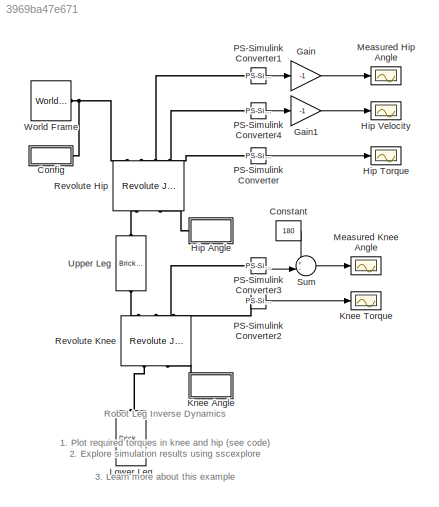
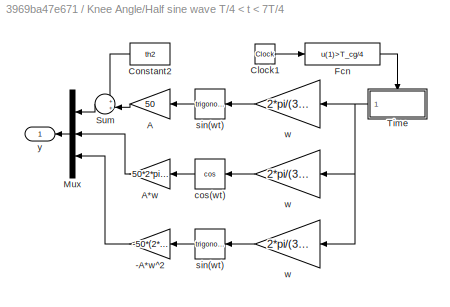
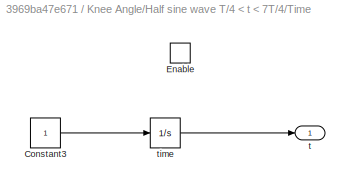
MODEL slx_3969ba47e671
KIND model
CONFIG AbsTol = 1e-4
CONFIG EnableMultiTasking = on
CONFIG FixedStep = auto
CONFIG InitFcn = r2d=180/pi;\nif (~exist('TimeValues'))\n  sm_robot_run_4legs_param_def_load(bdroot)\nend
CONFIG MaxStep = 1e-3
CONFIG MinStep = auto
CONFIG RelTol = 1e-3
CONFIG SampleTimeConstraint = Unconstrained
CONFIG SolverName = ode15s
CONFIG StartTime = 0.0
CONFIG StopTime = max(TimeValues)
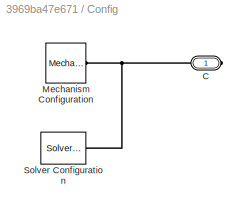
BLOCK [SubSystem] Config
  Ports = [0, 0, 0, 0, 0, 0, 1]
  RequestExecContextInheritance = off
BLOCK [PMIOPort] Config/C
  Side = Right
BLOCK [Reference] Config/Mechanism Configuration  REF=sm_lib/Utilities/Mechanism
Configuration
  Ports = [0, 0, 0, 0, 0, 0, 1]
  SourceBlock = sm_lib/Utilities/Mechanism\nConfiguration
  SourceProductBaseCode = MS
  SourceType = Mechanism\nConfiguration
BLOCK [Reference] Config/Solver Configuration  REF=nesl_utility/Solver
Configuration
  Ports = [0, 0, 0, 0, 0, 0, 1]
  SourceBlock = nesl_utility/Solver\nConfiguration
  SourceProductBaseCode = SS,PW,VE
  SourceType = Solver\nConfiguration
BLOCK [Constant] Constant
  Value = 180
BLOCK [Gain] Gain
  Gain = -1
BLOCK [Gain] Gain1
  Gain = -1
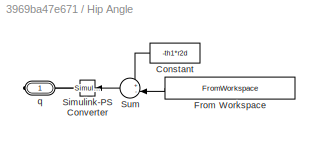
BLOCK [SubSystem] Hip Angle
  Ports = [0, 0, 0, 0, 0, 0, 1]
  RequestExecContextInheritance = off
BLOCK [Constant] Hip Angle/Constant
  Value = -th1*r2d
BLOCK [FromWorkspace] Hip Angle/From Workspace
  VariableName = [TimeValues DataValues]
BLOCK [Reference] Hip Angle/Simulink-PS Converter  REF=nesl_utility/Simulink-PS
Converter
  Ports = [1, 0, 0, 0, 0, 0, 1]
  SourceBlock = nesl_utility/Simulink-PS\nConverter
  SourceProductBaseCode = SS,PW,VE
  SourceType = Simulink-PS\nConverter
BLOCK [Sum] Hip Angle/Sum
  Inputs = +-|
  Ports = [2, 1]
BLOCK [PMIOPort] Hip Angle/q
  Side = Right
BLOCK [Scope] Hip Torque
  Floating = off
  NumInputPorts = 1
  Ports = [1]
  ScopeSpecificationString = Simulink.scopes.TimeScopeBlockCfg('CurrentConfiguration', extmgr.ConfigurationSet(extmgr.Configuration('Core','General UI',true),extmgr.Configuration('Core','Source UI',true),extmgr.Configuration('Sources','WiredSimulink',true,'DataLogging',true,'DataLoggingVariableName','hip_torque','DataLoggingSaveFormat','StructureWithTime','DataLoggingDecimation','1','DataLoggingDecimateData',true),extmgr.Conf...<+1712ch>
BLOCK [Scope] Hip Velocity
  Floating = off
  NumInputPorts = 1
  Ports = [1]
  ScopeSpecificationString = Simulink.scopes.TimeScopeBlockCfg('CurrentConfiguration', extmgr.ConfigurationSet(extmgr.Configuration('Core','General UI',true),extmgr.Configuration('Core','Source UI',true),extmgr.Configuration('Sources','WiredSimulink',true,'DataLogging',true,'DataLoggingSaveFormat','StructureWithTime','DataLoggingLimitDataPoints',true,'DataLoggingDecimation','1','DataLoggingDecimateData',true,'DataLoggingVaria...<+1772ch>
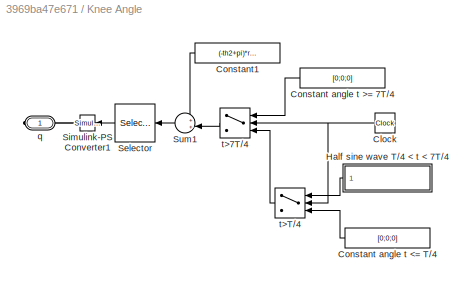
BLOCK [SubSystem] Knee Angle
  Ports = [0, 0, 0, 0, 0, 0, 1]
  RequestExecContextInheritance = off
BLOCK [Clock] Knee Angle/Clock
BLOCK [Constant] Knee Angle/Constant angle t <= T//4
  Value = [0;0;0]
BLOCK [Constant] Knee Angle/Constant angle t >= 7T//4
  NameLocation = top
  Value = [0;0;0]
BLOCK [Constant] Knee Angle/Constant1
  Value = (-th2+pi)*r2d
BLOCK [SubSystem] Knee Angle/Half sine wave T//4 < t < 7T//4
  Ports = [0, 1]
  RequestExecContextInheritance = off
BLOCK [Gain] Knee Angle/Half sine wave T//4 < t < 7T//4/-A*w^2
  Gain = -50*(2*pi/(3*T_cg))^2
BLOCK [Gain] Knee Angle/Half sine wave T//4 < t < 7T//4/A
  Gain = 50
BLOCK [Gain] Knee Angle/Half sine wave T//4 < t < 7T//4/A*w
  Gain = 50*2*pi/(3*T_cg)
BLOCK [Clock] Knee Angle/Half sine wave T//4 < t < 7T//4/Clock1
BLOCK [Constant] Knee Angle/Half sine wave T//4 < t < 7T//4/Constant2
  Value = th2
BLOCK [Fcn] Knee Angle/Half sine wave T//4 < t < 7T//4/Fcn
  Expr = u(1)>T_cg/4
BLOCK [Mux] Knee Angle/Half sine wave T//4 < t < 7T//4/Mux
  DisplayOption = bar
  Inputs = 3
  NameLocation = top
  Ports = [3, 1]
BLOCK [Sum] Knee Angle/Half sine wave T//4 < t < 7T//4/Sum
  Inputs = ++|
  NameLocation = top
  Ports = [2, 1]
BLOCK [SubSystem] Knee Angle/Half sine wave T//4 < t < 7T//4/Time
  Ports = [0, 1, 1]
  RequestExecContextInheritance = off
  TreatAsAtomicUnit = on
BLOCK [Constant] Knee Angle/Half sine wave T//4 < t < 7T//4/Time/Constant3
BLOCK [EnablePort] Knee Angle/Half sine wave T//4 < t < 7T//4/Time/Enable
  Ports = []
BLOCK [Outport] Knee Angle/Half sine wave T//4 < t < 7T//4/Time/t
  InitialOutput = 0
  VectorParamsAs1DForOutWhenUnconnected = off
BLOCK [Integrator] Knee Angle/Half sine wave T//4 < t < 7T//4/Time/time
  Ports = [1, 1]
BLOCK [Trigonometry] Knee Angle/Half sine wave T//4 < t < 7T//4/cos(wt)
  Operator = cos
  Ports = [1, 1]
BLOCK [Trigonometry] Knee Angle/Half sine wave T//4 < t < 7T//4/sin(wt)
  Ports = [1, 1]
BLOCK [Trigonometry] Knee Angle/Half sine wave T//4 < t < 7T//4/sin(wt) 
  Ports = [1, 1]
BLOCK [Gain] Knee Angle/Half sine wave T//4 < t < 7T//4/w
  Gain = 2*pi/(3*T_cg)
BLOCK [Gain] Knee Angle/Half sine wave T//4 < t < 7T//4/w 
  Gain = 2*pi/(3*T_cg)
BLOCK [Gain] Knee Angle/Half sine wave T//4 < t < 7T//4/w  
  Gain = 2*pi/(3*T_cg)
BLOCK [Outport] Knee Angle/Half sine wave T//4 < t < 7T//4/y
  VectorParamsAs1DForOutWhenUnconnected = off
BLOCK [Selector] Knee Angle/Selector
  IndexOptions = Index vector (dialog)
  Indices = 1
  InputPortWidth = 3
  OutputSizes = 1
  Ports = [1, 1]
BLOCK [Reference] Knee Angle/Simulink-PS Converter1  REF=nesl_utility/Simulink-PS
Converter
  Ports = [1, 0, 0, 0, 0, 0, 1]
  SourceBlock = nesl_utility/Simulink-PS\nConverter
  SourceProductBaseCode = SS,PW,VE
  SourceType = Simulink-PS\nConverter
BLOCK [Sum] Knee Angle/Sum1
  Inputs = ++|
  Ports = [2, 1]
BLOCK [PMIOPort] Knee Angle/q
  NameLocation = top
  Side = Right
BLOCK [Switch] Knee Angle/t>7T//4
  InputSameDT = off
  SaturateOnIntegerOverflow = off
  Threshold = 7*T_cg/4
BLOCK [Switch] Knee Angle/t>T//4
  InputSameDT = off
  SaturateOnIntegerOverflow = off
  Threshold = T_cg/4
BLOCK [Scope] Knee Torque
  Floating = off
  NumInputPorts = 1
  Ports = [1]
  ScopeSpecificationString = Simulink.scopes.TimeScopeBlockCfg('CurrentConfiguration', extmgr.ConfigurationSet(extmgr.Configuration('Core','General UI',true),extmgr.Configuration('Core','Source UI',true),extmgr.Configuration('Sources','WiredSimulink',true,'DataLogging',true,'DataLoggingVariableName','knee_torque','DataLoggingSaveFormat','StructureWithTime','DataLoggingDecimation','1','DataLoggingDecimateData',true),extmgr.Con...<+1747ch>
BLOCK [Reference] Lower Leg  REF=sm_lib/Body Elements/Brick Solid
  NameLocation = left
  Ports = [0, 0, 0, 0, 0, 1, 1]
  SourceBlock = sm_lib/Body Elements/Brick Solid
  SourceProductBaseCode = MS
  SourceType = Brick Solid
BLOCK [Scope] Measured Hip Angle
  Floating = off
  NumInputPorts = 1
  Ports = [1]
  ScopeSpecificationString = Simulink.scopes.TimeScopeBlockCfg('CurrentConfiguration', extmgr.ConfigurationSet(extmgr.Configuration('Core','General UI',true),extmgr.Configuration('Core','Source UI',true),extmgr.Configuration('Sources','WiredSimulink',true,'DataLogging',true,'DataLoggingSaveFormat','StructureWithTime','DataLoggingLimitDataPoints',true,'DataLoggingDecimation','1','DataLoggingDecimateData',true,'DataLoggingVaria...<+1759ch>
BLOCK [Scope] Measured Knee Angle
  Floating = off
  NumInputPorts = 1
  Ports = [1]
  ScopeSpecificationString = Simulink.scopes.TimeScopeBlockCfg('CurrentConfiguration', extmgr.ConfigurationSet(extmgr.Configuration('Core','General UI',true),extmgr.Configuration('Core','Source UI',true),extmgr.Configuration('Sources','WiredSimulink',true,'DataLogging',true,'DataLoggingVariableName','Knee','DataLoggingSaveFormat','StructureWithTime','DataLoggingDecimation','1','DataLoggingDecimateData',true),extmgr.Configurat...<+1736ch>
BLOCK [Reference] PS-Simulink Converter  REF=nesl_utility/PS-Simulink
Converter
  Ports = [0, 1, 0, 0, 0, 1]
  SourceBlock = nesl_utility/PS-Simulink\nConverter
  SourceProductBaseCode = SS,PW,VE
  SourceType = PS-Simulink\nConverter
BLOCK [Reference] PS-Simulink Converter1  REF=nesl_utility/PS-Simulink
Converter
  Ports = [0, 1, 0, 0, 0, 1]
  SourceBlock = nesl_utility/PS-Simulink\nConverter
  SourceProductBaseCode = SS,PW,VE
  SourceType = PS-Simulink\nConverter
BLOCK [Reference] PS-Simulink Converter2  REF=nesl_utility/PS-Simulink
Converter
  Ports = [0, 1, 0, 0, 0, 1]
  SourceBlock = nesl_utility/PS-Simulink\nConverter
  SourceProductBaseCode = SS,PW,VE
  SourceType = PS-Simulink\nConverter
BLOCK [Reference] PS-Simulink Converter3  REF=nesl_utility/PS-Simulink
Converter
  Ports = [0, 1, 0, 0, 0, 1]
  SourceBlock = nesl_utility/PS-Simulink\nConverter
  SourceProductBaseCode = SS,PW,VE
  SourceType = PS-Simulink\nConverter
BLOCK [Reference] PS-Simulink Converter4  REF=nesl_utility/PS-Simulink
Converter
  Ports = [0, 1, 0, 0, 0, 1]
  SourceBlock = nesl_utility/PS-Simulink\nConverter
  SourceProductBaseCode = SS,PW,VE
  SourceType = PS-Simulink\nConverter
BLOCK [Reference] Revolute Hip  REF=sm_lib/Joints/Revolute Joint
  NameLocation = right
  Ports = [0, 0, 0, 0, 0, 2, 4]
  SourceBlock = sm_lib/Joints/Revolute Joint
  SourceProductBaseCode = MS
  SourceType = Revolute Joint
BLOCK [Reference] Revolute Knee  REF=sm_lib/Joints/Revolute Joint
  NameLocation = left
  Ports = [0, 0, 0, 0, 0, 2, 3]
  SourceBlock = sm_lib/Joints/Revolute Joint
  SourceProductBaseCode = MS
  SourceType = Revolute Joint
BLOCK [Sum] Sum
  Inputs = +-|
  Ports = [2, 1]
BLOCK [Reference] Upper Leg  REF=sm_lib/Body Elements/Brick Solid
  NameLocation = left
  Ports = [0, 0, 0, 0, 0, 1, 1]
  SourceBlock = sm_lib/Body Elements/Brick Solid
  SourceProductBaseCode = MS
  SourceType = Brick Solid
BLOCK [Reference] World Frame  REF=sm_lib/Frames and
Transforms/World Frame
  Ports = [0, 0, 0, 0, 0, 0, 1]
  SourceBlock = sm_lib/Frames and\nTransforms/World Frame
  SourceProductBaseCode = MS
  SourceType = World Frame
ANNOTATION (root): 1. Plot required torques in knee and hip ( see code ) 2. Explore simulation results using sscexplore 3. Learn more about this example
ANNOTATION (root): Robot Leg Inverse Dynamics
LINE Constant:1 -> Sum:1
LINE Gain1:1 -> Hip Velocity:1
LINE Gain:1 -> Measured Hip Angle:1
LINE Hip Angle/Constant:1 -> Hip Angle/Sum:1
LINE Hip Angle/From Workspace:1 -> Hip Angle/Sum:2
LINE Hip Angle/Sum:1 -> Hip Angle/Simulink-PS Converter:1
NET Knee Angle/Clock:1 -> Knee Angle/t>7T//4:2, Knee Angle/t>T//4:2
LINE Knee Angle/Constant angle t <= T//4:1 -> Knee Angle/t>T//4:3
LINE Knee Angle/Constant angle t >= 7T//4:1 -> Knee Angle/t>7T//4:1
LINE Knee Angle/Constant1:1 -> Knee Angle/Sum1:1
LINE Knee Angle/Half sine wave T//4 < t < 7T//4/-A*w^2:1 -> Knee Angle/Half sine wave T//4 < t < 7T//4/Mux:3
LINE Knee Angle/Half sine wave T//4 < t < 7T//4/A*w:1 -> Knee Angle/Half sine wave T//4 < t < 7T//4/Mux:2
LINE Knee Angle/Half sine wave T//4 < t < 7T//4/A:1 -> Knee Angle/Half sine wave T//4 < t < 7T//4/Sum:2
LINE Knee Angle/Half sine wave T//4 < t < 7T//4/Clock1:1 -> Knee Angle/Half sine wave T//4 < t < 7T//4/Fcn:1
LINE Knee Angle/Half sine wave T//4 < t < 7T//4/Constant2:1 -> Knee Angle/Half sine wave T//4 < t < 7T//4/Sum:1
LINE Knee Angle/Half sine wave T//4 < t < 7T//4/Fcn:1 -> Knee Angle/Half sine wave T//4 < t < 7T//4/Time:enable
LINE Knee Angle/Half sine wave T//4 < t < 7T//4/Mux:1 -> Knee Angle/Half sine wave T//4 < t < 7T//4/y:1
LINE Knee Angle/Half sine wave T//4 < t < 7T//4/Sum:1 -> Knee Angle/Half sine wave T//4 < t < 7T//4/Mux:1
LINE Knee Angle/Half sine wave T//4 < t < 7T//4/Time/Constant3:1 -> Knee Angle/Half sine wave T//4 < t < 7T//4/Time/time:1
LINE Knee Angle/Half sine wave T//4 < t < 7T//4/Time/time:1 -> Knee Angle/Half sine wave T//4 < t < 7T//4/Time/t:1
NET Knee Angle/Half sine wave T//4 < t < 7T//4/Time:1 -> Knee Angle/Half sine wave T//4 < t < 7T//4/w  :1, Knee Angle/Half sine wave T//4 < t < 7T//4/w :1, Knee Angle/Half sine wave T//4 < t < 7T//4/w:1
LINE Knee Angle/Half sine wave T//4 < t < 7T//4/cos(wt):1 -> Knee Angle/Half sine wave T//4 < t < 7T//4/A*w:1
LINE Knee Angle/Half sine wave T//4 < t < 7T//4/sin(wt) :1 -> Knee Angle/Half sine wave T//4 < t < 7T//4/-A*w^2:1
LINE Knee Angle/Half sine wave T//4 < t < 7T//4/sin(wt):1 -> Knee Angle/Half sine wave T//4 < t < 7T//4/A:1
LINE Knee Angle/Half sine wave T//4 < t < 7T//4/w  :1 -> Knee Angle/Half sine wave T//4 < t < 7T//4/sin(wt) :1
LINE Knee Angle/Half sine wave T//4 < t < 7T//4/w :1 -> Knee Angle/Half sine wave T//4 < t < 7T//4/cos(wt):1
LINE Knee Angle/Half sine wave T//4 < t < 7T//4/w:1 -> Knee Angle/Half sine wave T//4 < t < 7T//4/sin(wt):1
LINE Knee Angle/Half sine wave T//4 < t < 7T//4:1 -> Knee Angle/t>T//4:1
LINE Knee Angle/Selector:1 -> Knee Angle/Simulink-PS Converter1:1
LINE Knee Angle/Sum1:1 -> Knee Angle/Selector:1
LINE Knee Angle/t>7T//4:1 -> Knee Angle/Sum1:2
LINE Knee Angle/t>T//4:1 -> Knee Angle/t>7T//4:3
LINE PS-Simulink Converter1:1 -> Gain:1
LINE PS-Simulink Converter2:1 -> Knee Torque:1
LINE PS-Simulink Converter3:1 -> Sum:2
LINE PS-Simulink Converter4:1 -> Gain1:1
LINE PS-Simulink Converter:1 -> Hip Torque:1
LINE Sum:1 -> Measured Knee Angle:1
PNET net1: Config/C:RConn1 -- Config/Mechanism Configuration:RConn1 -- Config/Solver Configuration:RConn1
PNET net2: Config:RConn1 -- Revolute Hip:RConn1 -- World Frame:RConn1
PLINE Hip Angle/Simulink-PS Converter:RConn1 -- Hip Angle/q:RConn1
PLINE Hip Angle:RConn1 -- Revolute Hip:LConn2
PLINE Knee Angle/Simulink-PS Converter1:RConn1 -- Knee Angle/q:RConn1
PLINE Knee Angle:RConn1 -- Revolute Knee:LConn2
PLINE Lower Leg:RConn1 -- Revolute Knee:LConn1
PLINE PS-Simulink Converter1:LConn1 -- Revolute Hip:RConn2
PLINE PS-Simulink Converter2:LConn1 -- Revolute Knee:RConn3
PLINE PS-Simulink Converter3:LConn1 -- Revolute Knee:RConn2
PLINE PS-Simulink Converter4:LConn1 -- Revolute Hip:RConn3
PLINE PS-Simulink Converter:LConn1 -- Revolute Hip:RConn4
PLINE Revolute Hip:LConn1 -- Upper Leg:RConn1
PLINE Revolute Knee:RConn1 -- Upper Leg:LConn1
note: NET lines group one-source signal fan-out (src -> all destinations, sorted); 1:1 wires keep LINE; PNET lines group multi-terminal physical nets as a canonical sorted terminal list (undirected conserving connections); 2-terminal nets keep the pairwise PLINE form
